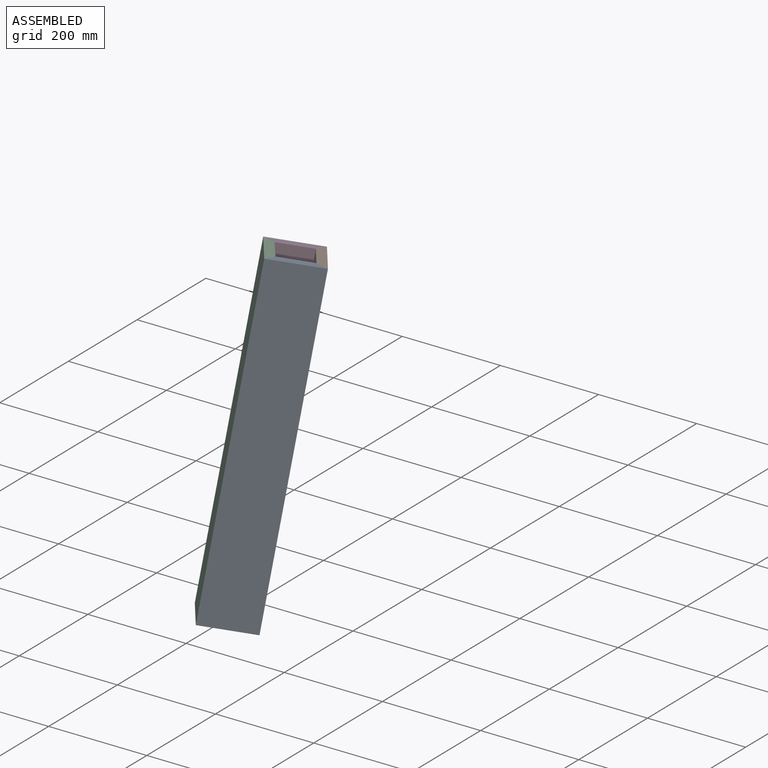
[diagram: assembled view]
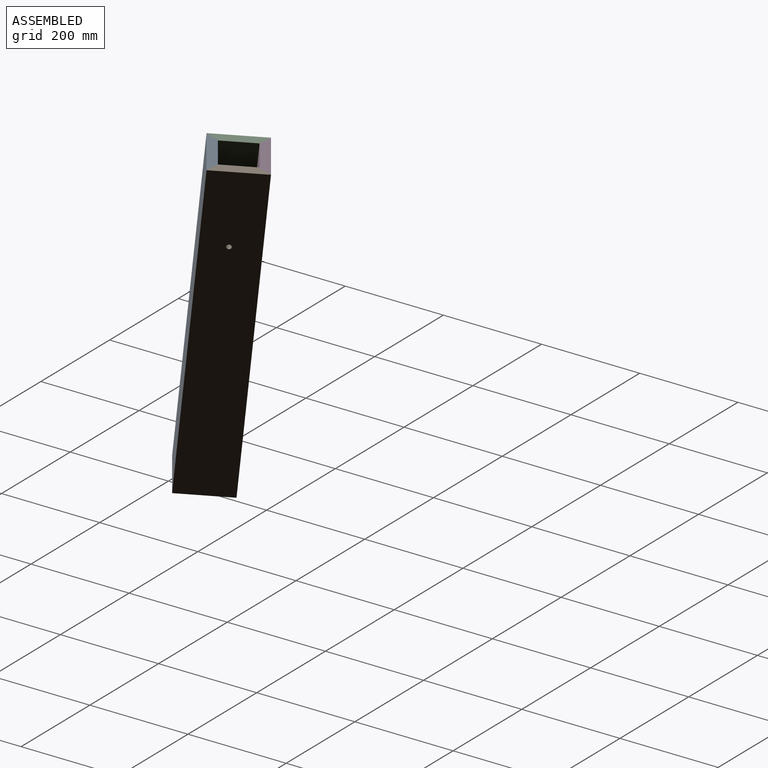
[diagram: assembled view, second angle]
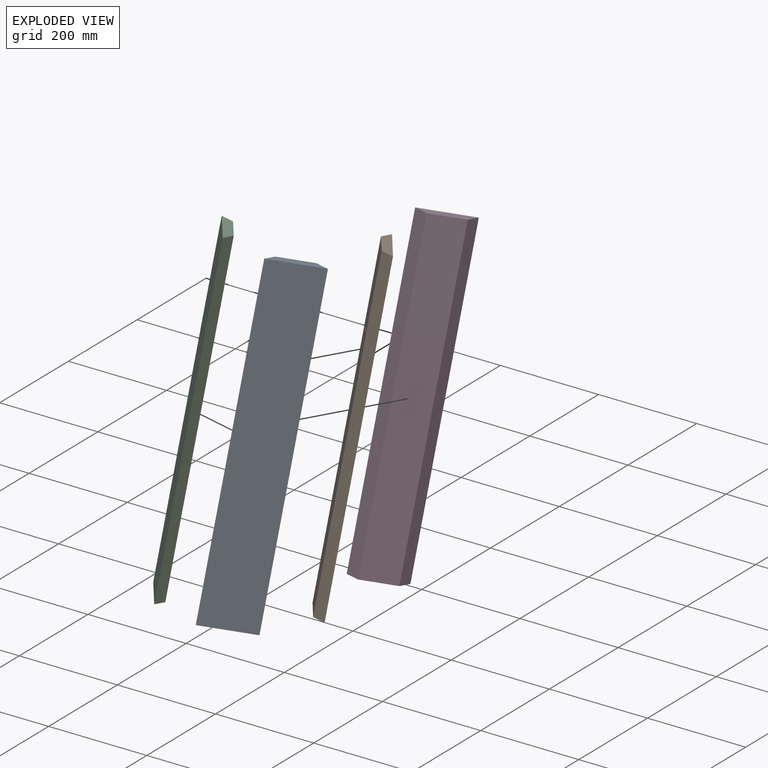
[diagram: exploded view]
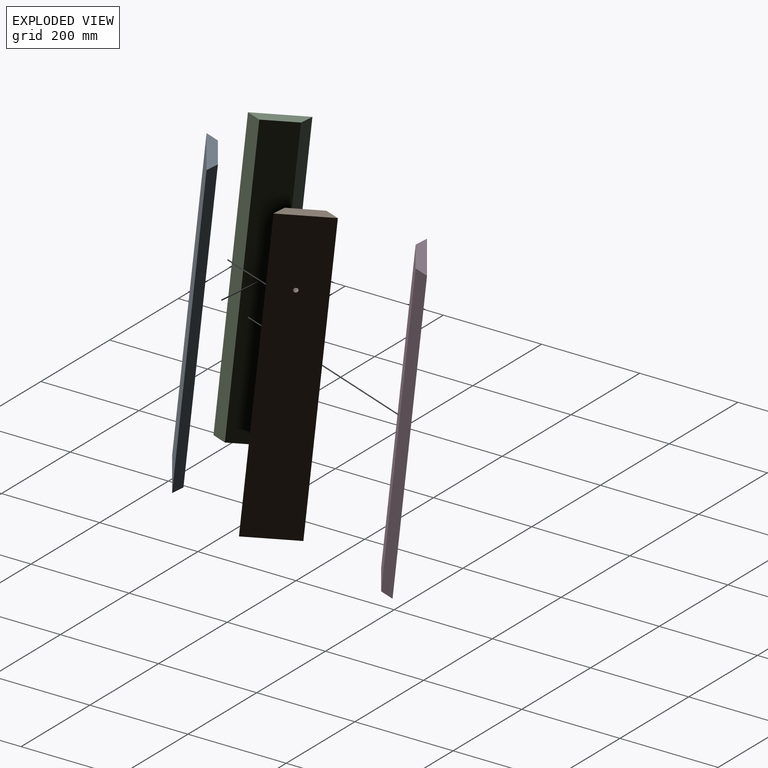
[diagram: exploded view, second angle]
ASSEMBLY  parts=4 mates=3
PART A: 6 faces, bbox 108x660.4x19.1 mm
  f0: plane 660.4x107.95mm, normal (0,0,1), area 71290.2mm2, adj f1,f3,f4,f5
  f1: plane 660.4x19.05mm, normal (-0.71,0,-0.71), area 17791.7mm2, adj f0,f2,f4,f5
  f2: plane 660.4x69.85mm, normal (0,0,-1), area 46128.9mm2, adj f1,f3,f4,f5
  f3: plane 660.4x19.05mm, normal (0.71,0,-0.71), area 17791.7mm2, adj f0,f2,f4,f5
  f4: plane 107.95x19.05mm, normal (0,-1,0), area 1693.5mm2, adj f0,f1,f2,f3
  f5: plane 107.95x19.05mm, normal (0,1,0), area 1693.5mm2, adj f0,f1,f2,f3
PART B: 7 faces, bbox 108x660.4x19.1 mm
  f0: plane 660.4x19.05mm, normal (0.71,0,-0.71), area 17791.7mm2, adj f1,f2,f3,f5
  f1: plane 107.95x19.05mm, normal (0,-1,0), area 1693.5mm2, adj f0,f2,f3,f4
  f2: plane 660.4x69.85mm, normal (0,0,-1), area 46057.7mm2, adj f0,f1,f4,f5,f6
  f3: plane 660.4x107.95mm, normal (0,0,1), area 71218.9mm2, adj f0,f1,f4,f5,f6
  f4: plane 660.4x19.05mm, normal (-0.71,0,-0.71), area 17791.7mm2, adj f1,f2,f3,f5
  f5: plane 107.95x19.05mm, normal (0,1,0), area 1693.5mm2, adj f0,f2,f3,f4
  f6: cylinder r=4.76mm len=19.05mm, axis (0,0,1), area 570mm2, adj f2,f3
PART C: same geometry as A
PART D: same geometry as A
PLACE A rot(axis=(0.89,0.38,0.24),88.2deg) t=(164.27,-7.21,241.6)mm
PLACE B rot(axis=(0.34,0.73,0.59),142.5deg) t=(251.36,53.77,222.85)mm
PLACE C rot(axis=(0.77,-0.45,-0.45),92.1deg) t=(101.25,79.94,232.33)mm
PLACE D rot(axis=(0.17,-0.74,-0.65),149.4deg) t=(188.34,140.92,213.58)mm
MATE fastened A.f3 <-> B.f4  axis (0.16,0.97,-0.18) through (221.07,-2.57,-101.1)mm
MATE fastened D.f3 <-> C.f1  axis (-0.16,-0.97,0.18) through (70.97,23.61,-91.62)mm
MATE fastened A.f1 <-> C.f3  axis (-0.98,0.17,0.06) through (133.99,-63.55,-82.35)mm
